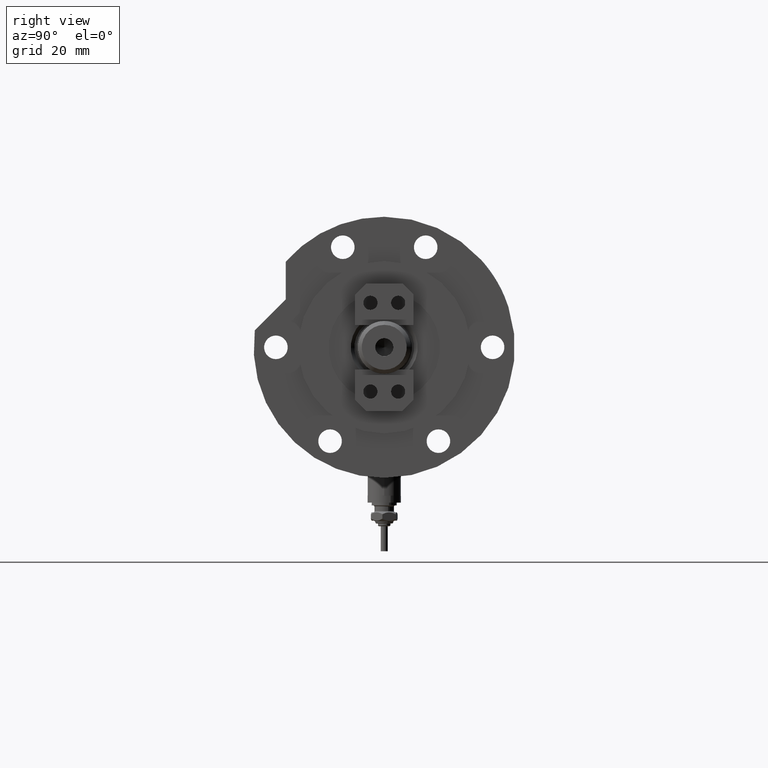
[diagram: clean part render]
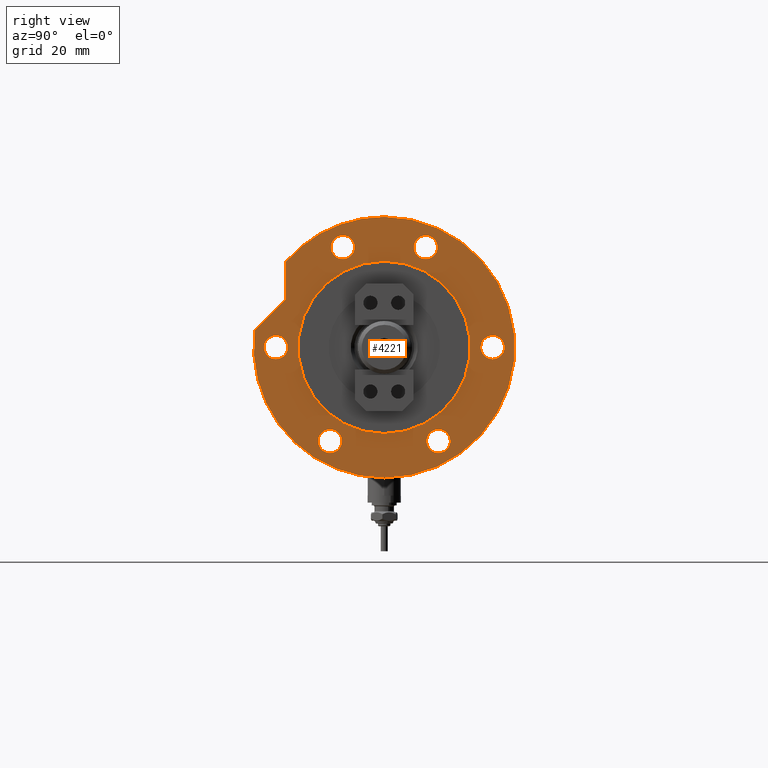
[diagram: same view with one face highlighted and labeled with its STEP entity id]
A machine part, right view. The second image highlights one B-rep face of the part: STEP entity #4221.
In plain terms, the highlighted planar face has unit normal (1, 0, -0).
Its self-contained STEP definition (entity closure, byte-faithful):
#122 = CARTESIAN_POINT ( 'NONE',  ( 0.000000000000000000, 0.000000000000000000, 17.00000000000000000 ) ) ;
#163 = CARTESIAN_POINT ( 'NONE',  ( -29.52499074759301578, -19.50000000000015277, 17.00000000000000000 ) ) ;
#165 = DIRECTION ( 'NONE',  ( 0.000000000000000000, 0.000000000000000000, 1.000000000000000000 ) ) ;
#364 = EDGE_CURVE ( 'NONE', #3489, #4114, #5200, .T. ) ;
#370 = ORIENTED_EDGE ( 'NONE', *, *, #4469, .F. ) ;
#422 = CIRCLE ( 'NONE', #3801, 4.250000000000000888 ) ;
#456 = EDGE_CURVE ( 'NONE', #2215, #1632, #8543, .T. ) ;
#486 = CARTESIAN_POINT ( 'NONE',  ( 36.03130176794011419, 14.92465386223865842, 17.00000000000000000 ) ) ;
#527 = ORIENTED_EDGE ( 'NONE', *, *, #4958, .F. ) ;
#533 = EDGE_CURVE ( 'NONE', #6599, #7034, #2534, .T. ) ;
#536 = VERTEX_POINT ( 'NONE', #4582 ) ;
#554 = CIRCLE ( 'NONE', #3098, 4.250000000000000888 ) ;
#569 = DIRECTION ( 'NONE',  ( 1.000000000000000000, 0.000000000000000000, 0.000000000000000000 ) ) ;
#607 = AXIS2_PLACEMENT_3D ( 'NONE', #6281, #6950, #6817 ) ;
#634 = EDGE_CURVE ( 'NONE', #7034, #6599, #554, .T. ) ;
#641 = DIRECTION ( 'NONE',  ( 0.000000000000000000, 0.000000000000000000, 1.000000000000000000 ) ) ;
#706 = CARTESIAN_POINT ( 'NONE',  ( 40.28130176794012129, 14.92465386223865842, 17.00000000000000000 ) ) ;
#808 = VERTEX_POINT ( 'NONE', #7511 ) ;
#814 = DIRECTION ( 'NONE',  ( 0.000000000000000000, 0.000000000000000000, 1.000000000000000000 ) ) ;
#887 = FACE_BOUND ( 'NONE', #4811, .T. ) ;
#894 = AXIS2_PLACEMENT_3D ( 'NONE', #7649, #1618, #4311 ) ;
#916 = ORIENTED_EDGE ( 'NONE', *, *, #7621, .T. ) ;
#946 = LINE ( 'NONE', #7236, #7455 ) ;
#1026 = DIRECTION ( 'NONE',  ( 1.000000000000000000, 0.000000000000000000, 0.000000000000000000 ) ) ;
#1075 = EDGE_CURVE ( 'NONE', #8542, #3264, #422, .T. ) ;
#1190 = DIRECTION ( 'NONE',  ( 1.000000000000000000, 0.000000000000000000, 0.000000000000000000 ) ) ;
#1257 = DIRECTION ( 'NONE',  ( 0.000000000000000000, 0.000000000000000000, 1.000000000000000000 ) ) ;
#1329 = VERTEX_POINT ( 'NONE', #3030 ) ;
#1370 = DIRECTION ( 'NONE',  ( 0.000000000000000000, 0.000000000000000000, 1.000000000000000000 ) ) ;
#1390 = EDGE_CURVE ( 'NONE', #3489, #8182, #946, .T. ) ;
#1397 = CARTESIAN_POINT ( 'NONE',  ( -4.250000000000000888, 39.00000000000000000, 17.00000000000000000 ) ) ;
#1459 = CIRCLE ( 'NONE', #894, 4.250000000000003553 ) ;
#1474 = DIRECTION ( 'NONE',  ( 0.000000000000000000, 0.000000000000000000, 1.000000000000000000 ) ) ;
#1550 = DIRECTION ( 'NONE',  ( 1.000000000000000000, 0.000000000000000000, -0.000000000000000000 ) ) ;
#1618 = DIRECTION ( 'NONE',  ( 0.000000000000000000, 0.000000000000000000, 1.000000000000000000 ) ) ;
#1632 = VERTEX_POINT ( 'NONE', #706 ) ;
#1683 = DIRECTION ( 'NONE',  ( 0.000000000000000000, 0.000000000000000000, 1.000000000000000000 ) ) ;
#1701 = CARTESIAN_POINT ( 'NONE',  ( 36.03130176794011419, -14.92465386223865842, 17.00000000000000000 ) ) ;
#1726 = ORIENTED_EDGE ( 'NONE', *, *, #4506, .F. ) ;
#1808 = CARTESIAN_POINT ( 'NONE',  ( 3.617158501555293296E-14, 35.47361286101151734, 17.00000000000000000 ) ) ;
#1825 = CARTESIAN_POINT ( 'NONE',  ( 0.000000000000000000, -39.00000000000000000, 17.00000000000000000 ) ) ;
#1831 = CARTESIAN_POINT ( 'NONE',  ( -38.02499074759315079, 19.49999999999992539, 17.00000000000000000 ) ) ;
#1875 = CIRCLE ( 'NONE', #7638, 4.250000000000003553 ) ;
#1889 = EDGE_LOOP ( 'NONE', ( #5746, #6306 ) ) ;
#2027 = CARTESIAN_POINT ( 'NONE',  ( 4.250000000000000888, -39.00000000000000000, 17.00000000000000000 ) ) ;
#2029 = CIRCLE ( 'NONE', #4155, 46.99999999999999289 ) ;
#2044 = CARTESIAN_POINT ( 'NONE',  ( 31.00000000000000711, 3.796405077356795904E-15, 17.00000000000000000 ) ) ;
#2159 = AXIS2_PLACEMENT_3D ( 'NONE', #3176, #641, #4622 ) ;
#2183 = DIRECTION ( 'NONE',  ( 1.000000000000000000, 0.000000000000000000, 0.000000000000000000 ) ) ;
#2215 = VERTEX_POINT ( 'NONE', #2451 ) ;
#2226 = ORIENTED_EDGE ( 'NONE', *, *, #6118, .F. ) ;
#2282 = DIRECTION ( 'NONE',  ( 0.000000000000000000, 0.000000000000000000, 1.000000000000000000 ) ) ;
#2294 = CIRCLE ( 'NONE', #607, 4.250000000000003553 ) ;
#2348 = FACE_BOUND ( 'NONE', #5368, .T. ) ;
#2447 = AXIS2_PLACEMENT_3D ( 'NONE', #1701, #6664, #7868 ) ;
#2450 = CARTESIAN_POINT ( 'NONE',  ( 17.22217135699461110, 35.47361286101150313, 17.00000000000000000 ) ) ;
#2451 = CARTESIAN_POINT ( 'NONE',  ( 31.78130176794011064, 14.92465386223865842, 17.00000000000000000 ) ) ;
#2476 = CARTESIAN_POINT ( 'NONE',  ( 0.000000000000000000, 0.000000000000000000, 17.00000000000000000 ) ) ;
#2484 = LINE ( 'NONE', #1808, #3171 ) ;
#2497 = EDGE_CURVE ( 'NONE', #6528, #7675, #6347, .T. ) ;
#2513 = CARTESIAN_POINT ( 'NONE',  ( 0.000000000000000000, 0.000000000000000000, 17.00000000000000000 ) ) ;
#2521 = DIRECTION ( 'NONE',  ( 0.7071067811865511255, -0.7071067811865440200, 0.000000000000000000 ) ) ;
#2524 = DIRECTION ( 'NONE',  ( 1.000000000000000000, 0.000000000000000000, 0.000000000000000000 ) ) ;
#2534 = CIRCLE ( 'NONE', #3379, 4.250000000000000888 ) ;
#2706 = DIRECTION ( 'NONE',  ( 0.000000000000000000, 0.000000000000000000, 1.000000000000000000 ) ) ;
#2731 = CIRCLE ( 'NONE', #2159, 46.99999999999999289 ) ;
#2734 = EDGE_CURVE ( 'NONE', #3264, #8542, #6068, .T. ) ;
#2860 = DIRECTION ( 'NONE',  ( 0.000000000000000000, 0.000000000000000000, 1.000000000000000000 ) ) ;
#2865 = EDGE_LOOP ( 'NONE', ( #3735, #5565 ) ) ;
#2878 = PLANE ( 'NONE',  #5800 ) ;
#2965 = FACE_BOUND ( 'NONE', #1889, .T. ) ;
#3030 = CARTESIAN_POINT ( 'NONE',  ( 40.28130176794012129, -14.92465386223865842, 17.00000000000000000 ) ) ;
#3098 = AXIS2_PLACEMENT_3D ( 'NONE', #3426, #814, #3554 ) ;
#3171 = VECTOR ( 'NONE', #7196, 1000.000000000000000 ) ;
#3176 = CARTESIAN_POINT ( 'NONE',  ( 0.000000000000000000, 0.000000000000000000, 17.00000000000000000 ) ) ;
#3197 = VERTEX_POINT ( 'NONE', #163 ) ;
#3264 = VERTEX_POINT ( 'NONE', #1397 ) ;
#3292 = VERTEX_POINT ( 'NONE', #6190 ) ;
#3372 = DIRECTION ( 'NONE',  ( 1.000000000000000000, 0.000000000000000000, 0.000000000000000000 ) ) ;
#3379 = AXIS2_PLACEMENT_3D ( 'NONE', #1825, #1257, #7908 ) ;
#3417 = CARTESIAN_POINT ( 'NONE',  ( -33.77499074759315079, 19.49999999999992539, 17.00000000000000000 ) ) ;
#3426 = CARTESIAN_POINT ( 'NONE',  ( 0.000000000000000000, -39.00000000000000000, 17.00000000000000000 ) ) ;
#3463 = CARTESIAN_POINT ( 'NONE',  ( 36.03130176794011419, 14.92465386223865842, 17.00000000000000000 ) ) ;
#3489 = VERTEX_POINT ( 'NONE', #7126 ) ;
#3554 = DIRECTION ( 'NONE',  ( 1.000000000000000000, 0.000000000000000000, 0.000000000000000000 ) ) ;
#3590 = FACE_BOUND ( 'NONE', #4162, .T. ) ;
#3677 = FACE_OUTER_BOUND ( 'NONE', #4955, .T. ) ;
#3703 = CARTESIAN_POINT ( 'NONE',  ( -29.52499074759315434, 19.49999999999992539, 17.00000000000000000 ) ) ;
#3729 = ORIENTED_EDGE ( 'NONE', *, *, #2734, .F. ) ;
#3735 = ORIENTED_EDGE ( 'NONE', *, *, #2497, .F. ) ;
#3762 = CARTESIAN_POINT ( 'NONE',  ( -33.77499074759315079, 19.49999999999992539, 17.00000000000000000 ) ) ;
#3771 = VERTEX_POINT ( 'NONE', #2044 ) ;
#3801 = AXIS2_PLACEMENT_3D ( 'NONE', #4916, #1683, #1026 ) ;
#4114 = VERTEX_POINT ( 'NONE', #4816 ) ;
#4155 = AXIS2_PLACEMENT_3D ( 'NONE', #8298, #2282, #5654 ) ;
#4162 = EDGE_LOOP ( 'NONE', ( #1726, #7673 ) ) ;
#4221 = ADVANCED_FACE ( 'NONE', ( #887, #4909, #2348, #2965, #3590, #8514, #3677, #6258 ), #2878, .T. ) ;
#4311 = DIRECTION ( 'NONE',  ( 1.000000000000000000, 0.000000000000000000, 0.000000000000000000 ) ) ;
#4374 = DIRECTION ( 'NONE',  ( 0.000000000000000000, 0.000000000000000000, 1.000000000000000000 ) ) ;
#4469 = EDGE_CURVE ( 'NONE', #3292, #3771, #8188, .T. ) ;
#4505 = DIRECTION ( 'NONE',  ( 0.000000000000000000, 0.000000000000000000, 1.000000000000000000 ) ) ;
#4506 = EDGE_CURVE ( 'NONE', #5239, #3197, #2294, .T. ) ;
#4565 = ORIENTED_EDGE ( 'NONE', *, *, #6993, .F. ) ;
#4582 = CARTESIAN_POINT ( 'NONE',  ( 31.78130176794011064, -14.92465386223865842, 17.00000000000000000 ) ) ;
#4622 = DIRECTION ( 'NONE',  ( 1.000000000000000000, 0.000000000000000000, 0.000000000000000000 ) ) ;
#4690 = EDGE_CURVE ( 'NONE', #3197, #5239, #1459, .T. ) ;
#4770 = EDGE_CURVE ( 'NONE', #4114, #8584, #2731, .T. ) ;
#4811 = EDGE_LOOP ( 'NONE', ( #3729, #5162 ) ) ;
#4816 = CARTESIAN_POINT ( 'NONE',  ( -46.99999999999999289, 0.000000000000000000, 17.00000000000000000 ) ) ;
#4909 = FACE_BOUND ( 'NONE', #8397, .T. ) ;
#4912 = CARTESIAN_POINT ( 'NONE',  ( -38.02499074759302289, -19.50000000000015277, 17.00000000000000000 ) ) ;
#4916 = CARTESIAN_POINT ( 'NONE',  ( 0.000000000000000000, 39.00000000000000000, 17.00000000000000000 ) ) ;
#4955 = EDGE_LOOP ( 'NONE', ( #4565, #5976, #5266, #5380, #916 ) ) ;
#4958 = EDGE_CURVE ( 'NONE', #1329, #536, #1875, .T. ) ;
#5028 = ORIENTED_EDGE ( 'NONE', *, *, #456, .F. ) ;
#5081 = AXIS2_PLACEMENT_3D ( 'NONE', #3762, #4374, #6477 ) ;
#5162 = ORIENTED_EDGE ( 'NONE', *, *, #1075, .F. ) ;
#5200 = CIRCLE ( 'NONE', #5888, 46.99999999999999289 ) ;
#5239 = VERTEX_POINT ( 'NONE', #4912 ) ;
#5266 = ORIENTED_EDGE ( 'NONE', *, *, #364, .T. ) ;
#5330 = ORIENTED_EDGE ( 'NONE', *, *, #6509, .F. ) ;
#5368 = EDGE_LOOP ( 'NONE', ( #5330, #527 ) ) ;
#5380 = ORIENTED_EDGE ( 'NONE', *, *, #4770, .T. ) ;
#5386 = CIRCLE ( 'NONE', #2447, 4.250000000000003553 ) ;
#5523 = DIRECTION ( 'NONE',  ( 1.000000000000000000, 0.000000000000000000, 0.000000000000000000 ) ) ;
#5565 = ORIENTED_EDGE ( 'NONE', *, *, #6666, .F. ) ;
#5620 = EDGE_LOOP ( 'NONE', ( #370, #7003 ) ) ;
#5654 = DIRECTION ( 'NONE',  ( 1.000000000000000000, 0.000000000000000000, 0.000000000000000000 ) ) ;
#5746 = ORIENTED_EDGE ( 'NONE', *, *, #533, .F. ) ;
#5800 = AXIS2_PLACEMENT_3D ( 'NONE', #2513, #8268, #1550 ) ;
#5802 = DIRECTION ( 'NONE',  ( 0.000000000000000000, 0.000000000000000000, 1.000000000000000000 ) ) ;
#5888 = AXIS2_PLACEMENT_3D ( 'NONE', #2476, #5802, #569 ) ;
#5976 = ORIENTED_EDGE ( 'NONE', *, *, #1390, .F. ) ;
#6037 = AXIS2_PLACEMENT_3D ( 'NONE', #3463, #2706, #3372 ) ;
#6068 = CIRCLE ( 'NONE', #8577, 4.250000000000000888 ) ;
#6098 = CIRCLE ( 'NONE', #6806, 4.249999999999996447 ) ;
#6118 = EDGE_CURVE ( 'NONE', #1632, #2215, #6225, .T. ) ;
#6143 = DIRECTION ( 'NONE',  ( 0.000000000000000000, 0.000000000000000000, 1.000000000000000000 ) ) ;
#6190 = CARTESIAN_POINT ( 'NONE',  ( -31.00000000000000711, 0.000000000000000000, 17.00000000000000000 ) ) ;
#6225 = CIRCLE ( 'NONE', #7498, 4.250000000000003553 ) ;
#6258 = FACE_BOUND ( 'NONE', #5620, .T. ) ;
#6281 = CARTESIAN_POINT ( 'NONE',  ( -33.77499074759302289, -19.50000000000015277, 17.00000000000000000 ) ) ;
#6306 = ORIENTED_EDGE ( 'NONE', *, *, #634, .F. ) ;
#6347 = CIRCLE ( 'NONE', #5081, 4.249999999999996447 ) ;
#6477 = DIRECTION ( 'NONE',  ( 1.000000000000000000, 0.000000000000000000, 0.000000000000000000 ) ) ;
#6509 = EDGE_CURVE ( 'NONE', #536, #1329, #5386, .T. ) ;
#6528 = VERTEX_POINT ( 'NONE', #1831 ) ;
#6566 = CARTESIAN_POINT ( 'NONE',  ( 4.250000000000000888, 39.00000000000000000, 17.00000000000000000 ) ) ;
#6599 = VERTEX_POINT ( 'NONE', #7218 ) ;
#6664 = DIRECTION ( 'NONE',  ( 0.000000000000000000, 0.000000000000000000, 1.000000000000000000 ) ) ;
#6666 = EDGE_CURVE ( 'NONE', #7675, #6528, #6098, .T. ) ;
#6806 = AXIS2_PLACEMENT_3D ( 'NONE', #3417, #1474, #6926 ) ;
#6817 = DIRECTION ( 'NONE',  ( 1.000000000000000000, 0.000000000000000000, 0.000000000000000000 ) ) ;
#6926 = DIRECTION ( 'NONE',  ( 1.000000000000000000, 0.000000000000000000, 0.000000000000000000 ) ) ;
#6950 = DIRECTION ( 'NONE',  ( 0.000000000000000000, 0.000000000000000000, 1.000000000000000000 ) ) ;
#6993 = EDGE_CURVE ( 'NONE', #8182, #808, #2484, .T. ) ;
#7003 = ORIENTED_EDGE ( 'NONE', *, *, #7533, .F. ) ;
#7034 = VERTEX_POINT ( 'NONE', #2027 ) ;
#7126 = CARTESIAN_POINT ( 'NONE',  ( 6.092310621118299352, 46.60347359688769586, 17.00000000000000000 ) ) ;
#7196 = DIRECTION ( 'NONE',  ( 1.000000000000000000, -1.019675812477181804E-15, 0.000000000000000000 ) ) ;
#7218 = CARTESIAN_POINT ( 'NONE',  ( -4.250000000000000888, -39.00000000000000000, 17.00000000000000000 ) ) ;
#7236 = CARTESIAN_POINT ( 'NONE',  ( 26.34789210900296652, 26.34789210900323297, 17.00000000000000000 ) ) ;
#7253 = CIRCLE ( 'NONE', #8352, 31.00000000000000711 ) ;
#7408 = CARTESIAN_POINT ( 'NONE',  ( 0.000000000000000000, 39.00000000000000000, 17.00000000000000000 ) ) ;
#7455 = VECTOR ( 'NONE', #2521, 999.9999999999998863 ) ;
#7498 = AXIS2_PLACEMENT_3D ( 'NONE', #486, #4505, #1190 ) ;
#7511 = CARTESIAN_POINT ( 'NONE',  ( 30.83217135699462830, 35.47361286101148892, 17.00000000000000000 ) ) ;
#7533 = EDGE_CURVE ( 'NONE', #3771, #3292, #7253, .T. ) ;
#7621 = EDGE_CURVE ( 'NONE', #8584, #808, #2029, .T. ) ;
#7638 = AXIS2_PLACEMENT_3D ( 'NONE', #8199, #6143, #2183 ) ;
#7649 = CARTESIAN_POINT ( 'NONE',  ( -33.77499074759302289, -19.50000000000015277, 17.00000000000000000 ) ) ;
#7673 = ORIENTED_EDGE ( 'NONE', *, *, #4690, .F. ) ;
#7675 = VERTEX_POINT ( 'NONE', #3703 ) ;
#7778 = AXIS2_PLACEMENT_3D ( 'NONE', #122, #165, #8251 ) ;
#7868 = DIRECTION ( 'NONE',  ( 1.000000000000000000, 0.000000000000000000, 0.000000000000000000 ) ) ;
#7908 = DIRECTION ( 'NONE',  ( 1.000000000000000000, 0.000000000000000000, 0.000000000000000000 ) ) ;
#7927 = CARTESIAN_POINT ( 'NONE',  ( 46.99999999999999289, 5.755839955992559063E-15, 17.00000000000000000 ) ) ;
#8049 = CARTESIAN_POINT ( 'NONE',  ( 0.000000000000000000, 0.000000000000000000, 17.00000000000000000 ) ) ;
#8182 = VERTEX_POINT ( 'NONE', #2450 ) ;
#8188 = CIRCLE ( 'NONE', #7778, 31.00000000000000711 ) ;
#8199 = CARTESIAN_POINT ( 'NONE',  ( 36.03130176794011419, -14.92465386223865842, 17.00000000000000000 ) ) ;
#8251 = DIRECTION ( 'NONE',  ( 1.000000000000000000, 0.000000000000000000, 0.000000000000000000 ) ) ;
#8268 = DIRECTION ( 'NONE',  ( 0.000000000000000000, 0.000000000000000000, 1.000000000000000000 ) ) ;
#8298 = CARTESIAN_POINT ( 'NONE',  ( 0.000000000000000000, 0.000000000000000000, 17.00000000000000000 ) ) ;
#8352 = AXIS2_PLACEMENT_3D ( 'NONE', #8049, #2860, #5523 ) ;
#8397 = EDGE_LOOP ( 'NONE', ( #5028, #2226 ) ) ;
#8514 = FACE_BOUND ( 'NONE', #2865, .T. ) ;
#8542 = VERTEX_POINT ( 'NONE', #6566 ) ;
#8543 = CIRCLE ( 'NONE', #6037, 4.250000000000003553 ) ;
#8577 = AXIS2_PLACEMENT_3D ( 'NONE', #7408, #1370, #2524 ) ;
#8584 = VERTEX_POINT ( 'NONE', #7927 ) ;